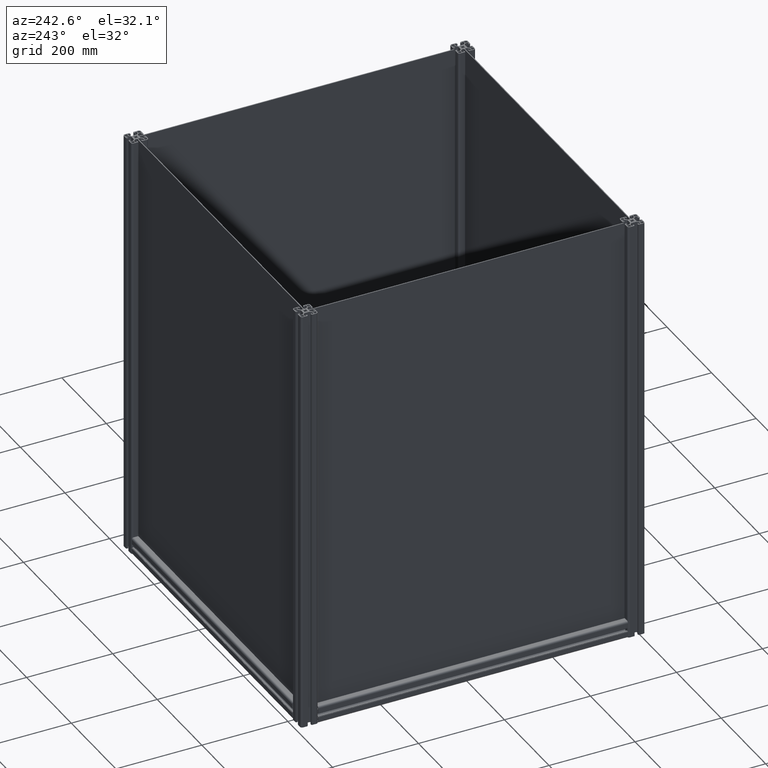
[diagram: clean part render]
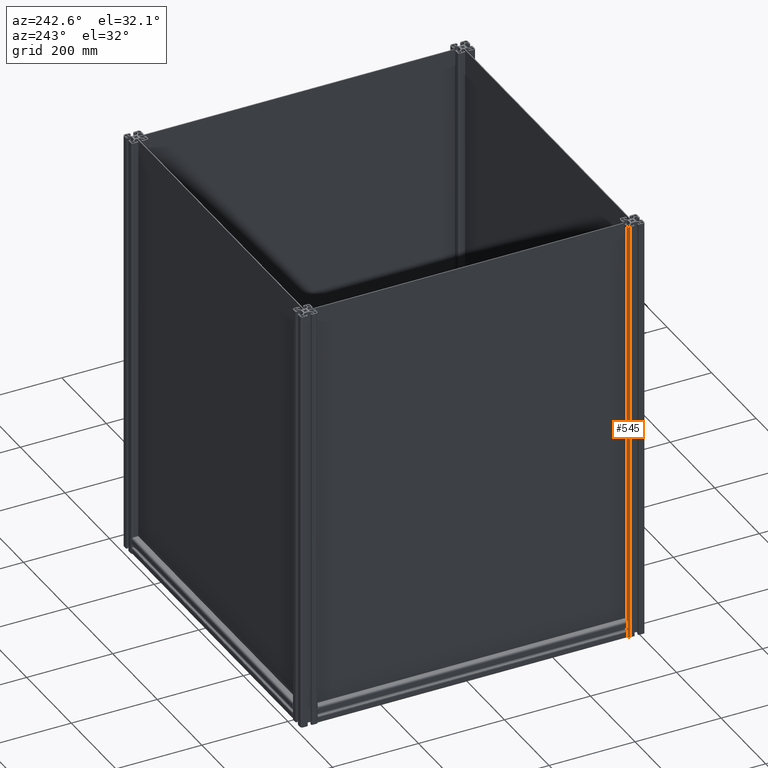
[diagram: same view with one face highlighted and labeled with its STEP entity id]
A machine part, auxiliary view. The second image highlights one B-rep face of the part: STEP entity #545.
In plain terms, the highlighted cylindrical surface (edge-blend (fillet) strip) has radius 4.5 mm, axis along (0, 0, -1).
Its self-contained STEP definition (entity closure, byte-faithful):
#377 = EDGE_CURVE ( 'NONE', #5975, #7692, #6594, .T. ) ;
#396 = AXIS2_PLACEMENT_3D ( 'NONE', #9655, #11556, #926 ) ;
#545 = ADVANCED_FACE ( 'NONE', ( #6507 ), #6526, .T. ) ;
#586 = CARTESIAN_POINT ( 'NONE',  ( -15.50000000000309974, 20.00000000000180123, 800.0000000000000000 ) ) ;
#876 = CIRCLE ( 'NONE', #396, 4.499999999996890487 ) ;
#926 = DIRECTION ( 'NONE',  ( -1.000000000000000000, 0.000000000000000000, 0.000000000000000000 ) ) ;
#929 = DIRECTION ( 'NONE',  ( 0.000000000000000000, 0.000000000000000000, 1.000000000000000000 ) ) ;
#1499 = DIRECTION ( 'NONE',  ( 0.000000000000000000, 0.000000000000000000, -1.000000000000000000 ) ) ;
#2276 = VECTOR ( 'NONE', #10772, 1000.000000000000000 ) ;
#2342 = ORIENTED_EDGE ( 'NONE', *, *, #7389, .T. ) ;
#3374 = AXIS2_PLACEMENT_3D ( 'NONE', #6997, #929, #11432 ) ;
#3792 = CARTESIAN_POINT ( 'NONE',  ( -20.00000000000000000, 15.50000000000494893, 600.0000000000000000 ) ) ;
#3913 = DIRECTION ( 'NONE',  ( 0.000000000000000000, 0.000000000000000000, -1.000000000000000000 ) ) ;
#4687 = DIRECTION ( 'NONE',  ( -1.000000000000000000, 0.000000000000000000, 0.000000000000000000 ) ) ;
#5668 = CARTESIAN_POINT ( 'NONE',  ( -15.50000000000309974, 15.50000000000494893, 800.0000000000000000 ) ) ;
#5826 = EDGE_LOOP ( 'NONE', ( #2342, #7645, #11374, #9810 ) ) ;
#5975 = VERTEX_POINT ( 'NONE', #11167 ) ;
#6197 = CARTESIAN_POINT ( 'NONE',  ( -20.00000000000000000, 15.50000000000494893, -400.0000000000000000 ) ) ;
#6443 = EDGE_CURVE ( 'NONE', #10162, #7692, #876, .T. ) ;
#6507 = FACE_OUTER_BOUND ( 'NONE', #5826, .T. ) ;
#6526 = CYLINDRICAL_SURFACE ( 'NONE', #10097, 4.499999999996894040 ) ;
#6594 = LINE ( 'NONE', #586, #10187 ) ;
#6690 = VERTEX_POINT ( 'NONE', #3792 ) ;
#6997 = CARTESIAN_POINT ( 'NONE',  ( -15.50000000000309974, 15.50000000000494893, 600.0000000000000000 ) ) ;
#7389 = EDGE_CURVE ( 'NONE', #10162, #6690, #9841, .T. ) ;
#7645 = ORIENTED_EDGE ( 'NONE', *, *, #11470, .F. ) ;
#7692 = VERTEX_POINT ( 'NONE', #9491 ) ;
#9491 = CARTESIAN_POINT ( 'NONE',  ( -15.50000000000309974, 20.00000000000183675, -400.0000000000000000 ) ) ;
#9655 = CARTESIAN_POINT ( 'NONE',  ( -15.50000000000309974, 15.50000000000494893, -400.0000000000000000 ) ) ;
#9810 = ORIENTED_EDGE ( 'NONE', *, *, #6443, .F. ) ;
#9841 = LINE ( 'NONE', #9857, #2276 ) ;
#9857 = CARTESIAN_POINT ( 'NONE',  ( -20.00000000000000000, 15.50000000000494893, 800.0000000000000000 ) ) ;
#10097 = AXIS2_PLACEMENT_3D ( 'NONE', #5668, #3913, #4687 ) ;
#10162 = VERTEX_POINT ( 'NONE', #6197 ) ;
#10187 = VECTOR ( 'NONE', #1499, 1000.000000000000000 ) ;
#10716 = CIRCLE ( 'NONE', #3374, 4.499999999996894040 ) ;
#10772 = DIRECTION ( 'NONE',  ( 0.000000000000000000, 0.000000000000000000, 1.000000000000000000 ) ) ;
#11167 = CARTESIAN_POINT ( 'NONE',  ( -15.50000000000309974, 20.00000000000180123, 600.0000000000000000 ) ) ;
#11374 = ORIENTED_EDGE ( 'NONE', *, *, #377, .T. ) ;
#11432 = DIRECTION ( 'NONE',  ( 1.000000000000000000, 0.000000000000000000, 0.000000000000000000 ) ) ;
#11470 = EDGE_CURVE ( 'NONE', #5975, #6690, #10716, .T. ) ;
#11556 = DIRECTION ( 'NONE',  ( 0.000000000000000000, 0.000000000000000000, -1.000000000000000000 ) ) ;